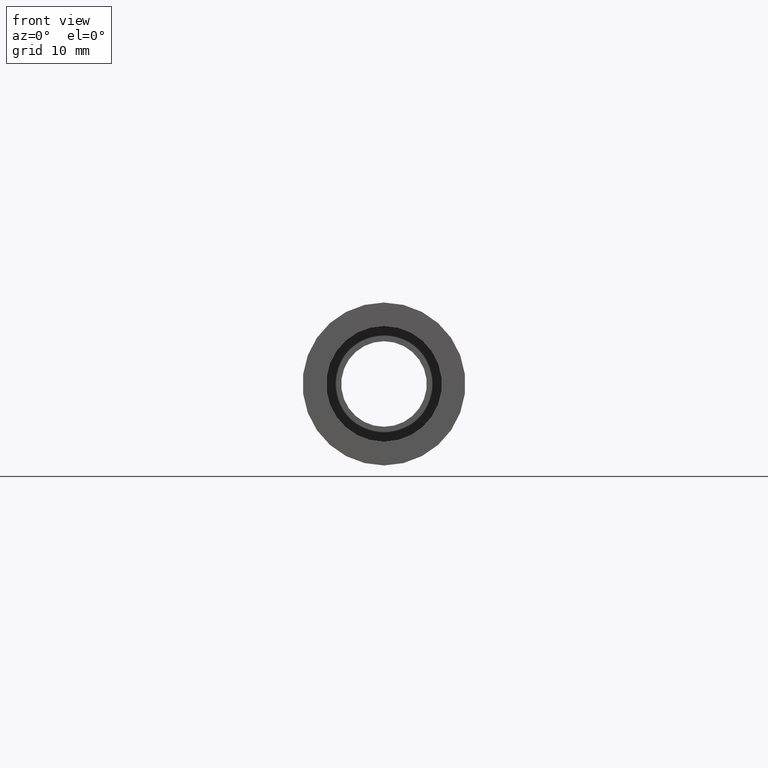
[diagram: clean part render]
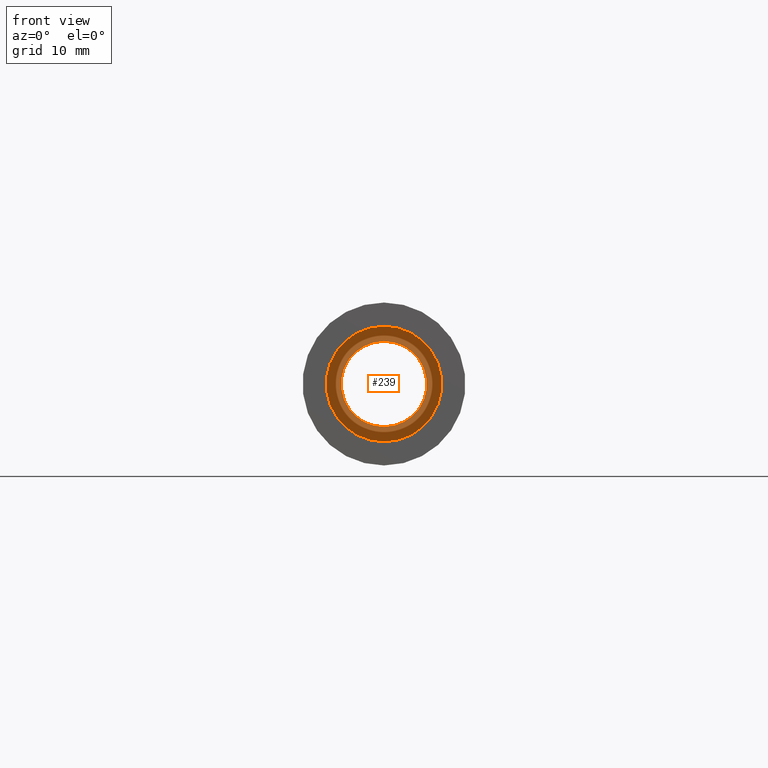
[diagram: same view with one face highlighted and labeled with its STEP entity id]
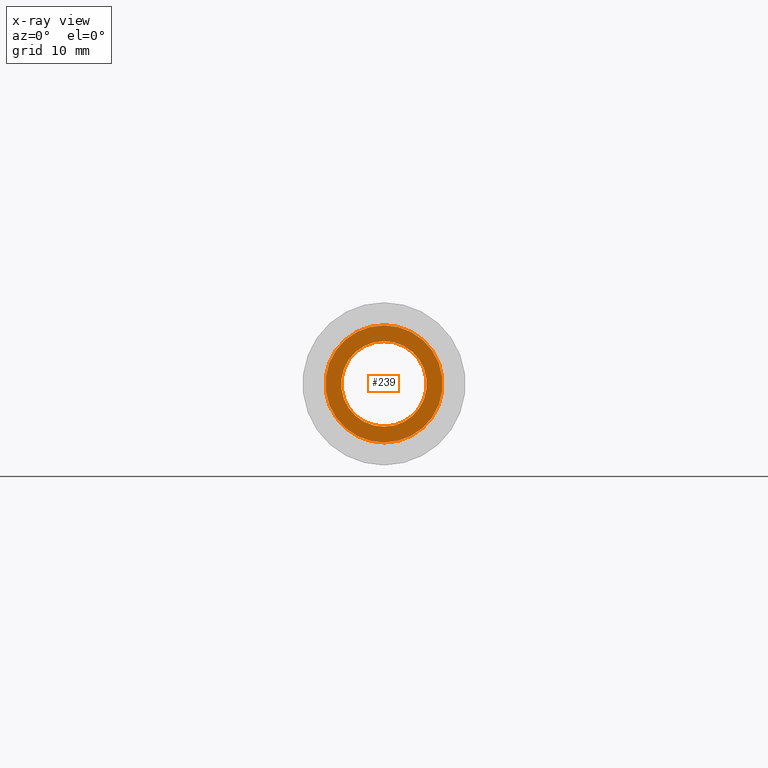
[diagram: x-ray of the same camera — body ghosted, the highlighted face saturated]
A machine part, front view. The second image highlights one B-rep face of the part: STEP entity #239.
The next image is the same camera in x-ray: the body ghosted, the highlighted face saturated — about 6% of this face is hidden behind the body in this view.
In plain terms, the highlighted planar face has unit normal (-0, 1, 0).
Its self-contained STEP definition (entity closure, byte-faithful):
#18 = AXIS2_PLACEMENT_3D ( 'NONE', #445, #320, #569 ) ;
#33 = ORIENTED_EDGE ( 'NONE', *, *, #168, .T. ) ;
#34 = FACE_OUTER_BOUND ( 'NONE', #564, .T. ) ;
#58 = DIRECTION ( 'NONE',  ( 0.0000000000000000000, 0.0000000000000000000, 1.000000000000000000 ) ) ;
#101 = DIRECTION ( 'NONE',  ( 0.0000000000000000000, 0.0000000000000000000, 1.000000000000000000 ) ) ;
#132 = DIRECTION ( 'NONE',  ( -0.0000000000000000000, 1.000000000000000000, -0.0000000000000000000 ) ) ;
#168 = EDGE_CURVE ( 'NONE', #234, #387, #663, .T. ) ;
#174 = CARTESIAN_POINT ( 'NONE',  ( 0.0000000000000000000, 74.19999999999998900, 6.850000000000009400 ) ) ;
#234 = VERTEX_POINT ( 'NONE', #456 ) ;
#239 = ADVANCED_FACE ( 'NONE', ( #34, #519 ), #749, .F. ) ;
#248 = EDGE_CURVE ( 'NONE', #387, #234, #413, .T. ) ;
#273 = CARTESIAN_POINT ( 'NONE',  ( 8.388830574159381700E-016, 74.19999999999998900, -6.850000000000009400 ) ) ;
#283 = AXIS2_PLACEMENT_3D ( 'NONE', #678, #429, #58 ) ;
#320 = DIRECTION ( 'NONE',  ( -0.0000000000000000000, 1.000000000000000000, -0.0000000000000000000 ) ) ;
#379 = CARTESIAN_POINT ( 'NONE',  ( 5.000000000000011500, 74.19999999999998900, 0.0000000000000000000 ) ) ;
#381 = DIRECTION ( 'NONE',  ( 0.0000000000000000000, 0.0000000000000000000, 1.000000000000000000 ) ) ;
#387 = VERTEX_POINT ( 'NONE', #484 ) ;
#393 = EDGE_LOOP ( 'NONE', ( #468, #33 ) ) ;
#395 = ORIENTED_EDGE ( 'NONE', *, *, #627, .F. ) ;
#413 = CIRCLE ( 'NONE', #448, 5.000000000000011500 ) ;
#421 = VERTEX_POINT ( 'NONE', #174 ) ;
#422 = CIRCLE ( 'NONE', #18, 6.850000000000009400 ) ;
#429 = DIRECTION ( 'NONE',  ( -0.0000000000000000000, 1.000000000000000000, -0.0000000000000000000 ) ) ;
#445 = CARTESIAN_POINT ( 'NONE',  ( 0.0000000000000000000, 74.19999999999998900, 0.0000000000000000000 ) ) ;
#448 = AXIS2_PLACEMENT_3D ( 'NONE', #545, #731, #101 ) ;
#456 = CARTESIAN_POINT ( 'NONE',  ( 6.123233995736780100E-016, 74.19999999999998900, -5.000000000000011500 ) ) ;
#468 = ORIENTED_EDGE ( 'NONE', *, *, #248, .T. ) ;
#484 = CARTESIAN_POINT ( 'NONE',  ( 0.0000000000000000000, 74.19999999999998900, 5.000000000000011500 ) ) ;
#499 = CIRCLE ( 'NONE', #602, 6.850000000000009400 ) ;
#510 = CARTESIAN_POINT ( 'NONE',  ( 0.0000000000000000000, 74.19999999999998900, 0.0000000000000000000 ) ) ;
#519 = FACE_BOUND ( 'NONE', #393, .T. ) ;
#545 = CARTESIAN_POINT ( 'NONE',  ( 0.0000000000000000000, 74.19999999999998900, 0.0000000000000000000 ) ) ;
#552 = ORIENTED_EDGE ( 'NONE', *, *, #707, .F. ) ;
#561 = DIRECTION ( 'NONE',  ( 0.0000000000000000000, 0.0000000000000000000, 1.000000000000000000 ) ) ;
#564 = EDGE_LOOP ( 'NONE', ( #552, #395 ) ) ;
#569 = DIRECTION ( 'NONE',  ( 0.0000000000000000000, 0.0000000000000000000, 1.000000000000000000 ) ) ;
#583 = AXIS2_PLACEMENT_3D ( 'NONE', #379, #762, #381 ) ;
#602 = AXIS2_PLACEMENT_3D ( 'NONE', #510, #132, #561 ) ;
#627 = EDGE_CURVE ( 'NONE', #802, #421, #499, .T. ) ;
#663 = CIRCLE ( 'NONE', #283, 5.000000000000011500 ) ;
#678 = CARTESIAN_POINT ( 'NONE',  ( 0.0000000000000000000, 74.19999999999998900, 0.0000000000000000000 ) ) ;
#707 = EDGE_CURVE ( 'NONE', #421, #802, #422, .T. ) ;
#731 = DIRECTION ( 'NONE',  ( -0.0000000000000000000, 1.000000000000000000, -0.0000000000000000000 ) ) ;
#749 = PLANE ( 'NONE',  #583 ) ;
#762 = DIRECTION ( 'NONE',  ( -0.0000000000000000000, 1.000000000000000000, 0.0000000000000000000 ) ) ;
#802 = VERTEX_POINT ( 'NONE', #273 ) ;